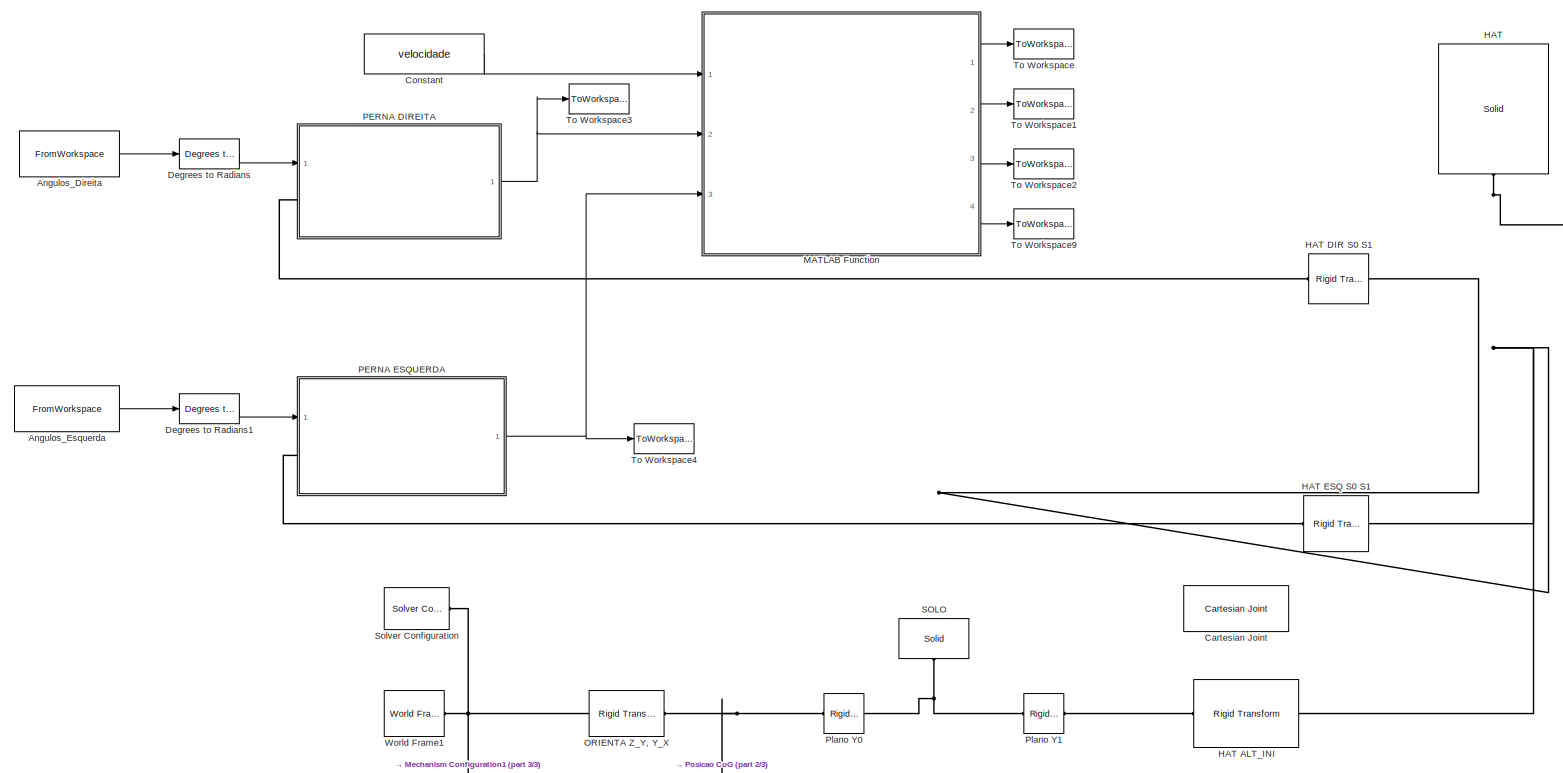
[diagram: root canvas - part 1/3, most of the canvas]
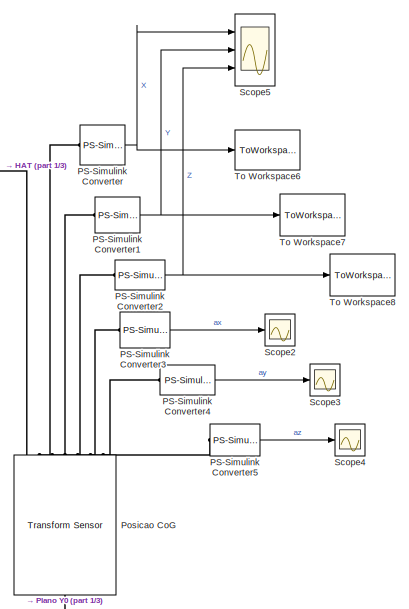
[diagram: root canvas - part 2/3, middle right region]
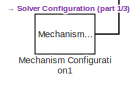
[diagram: root canvas - part 3/3, bottom left region]
MODEL slx_8b432cccf5de
KIND model
CONFIG AbsTol = 1e-5
CONFIG EnableMultiTasking = on
CONFIG FixedStep = auto
CONFIG MaxStep = 1e-2
CONFIG MinStep = auto
CONFIG RelTol = 1e-4
CONFIG SampleTimeConstraint = Unconstrained
CONFIG Solver = ode15s
CONFIG SolverName = ode15s
CONFIG StartTime = 0.0
CONFIG StopTime = ts
WORKSPACE source: external: MATLAB File  (data not in archive)
BLOCK [FromWorkspace] Angulos_Direita
  OutputAfterFinalValue = Holding final value
  SampleTime = 0
  VariableName = angulos_dir
  ZeroCross = on
BLOCK [FromWorkspace] Angulos_Esquerda
  OutputAfterFinalValue = Holding final value
  SampleTime = 0
  VariableName = angulos_esq
  ZeroCross = on
BLOCK [Reference] Cartesian Joint  REF=sm_lib/Joints/Cartesian
Joint
  Ports = [0, 0, 0, 0, 0, 1, 1]
  SourceBlock = sm_lib/Joints/Cartesian\nJoint
  SourceProductBaseCode = MS
  SourceProductName = Simscape Multibody
  SourceType = Cartesian\nJoint
BLOCK [Constant] Constant
  Value = velocidade
BLOCK [Reference] Degrees to Radians  REF=simulink_extras/Transformations/Degrees to
Radians
  Ports = [1, 1]
  SourceBlock = simulink_extras/Transformations/Degrees to\nRadians
  SourceProductBaseCode = SL
  SourceProductName = Simulink
  SourceType = DegreesToRadians
BLOCK [Reference] Degrees to Radians1  REF=simulink_extras/Transformations/Degrees to
Radians
  Ports = [1, 1]
  SourceBlock = simulink_extras/Transformations/Degrees to\nRadians
  SourceProductBaseCode = SL
  SourceProductName = Simulink
  SourceType = DegreesToRadians
BLOCK [Reference] HAT   REF=sm_lib/Body Elements/Solid
  Ports = [0, 0, 0, 0, 0, 1]
  SourceBlock = sm_lib/Body Elements/Solid
  SourceProductBaseCode = MS
  SourceProductName = Simscape Multibody
  SourceType = Solid
BLOCK [Reference] HAT ALT_INI  REF=sm_lib/Frames and
Transforms/Rigid
Transform
  Ports = [0, 0, 0, 0, 0, 1, 1]
  SourceBlock = sm_lib/Frames and\nTransforms/Rigid\nTransform
  SourceProductBaseCode = MS
  SourceProductName = Simscape Multibody
  SourceType = Rigid\nTransform
BLOCK [Reference] HAT DIR S0 S1  REF=sm_lib/Frames and
Transforms/Rigid
Transform
  Ports = [0, 0, 0, 0, 0, 1, 1]
  SourceBlock = sm_lib/Frames and\nTransforms/Rigid\nTransform
  SourceProductBaseCode = MS
  SourceProductName = Simscape Multibody
  SourceType = Rigid\nTransform
BLOCK [Reference] HAT ESQ S0 S1  REF=sm_lib/Frames and
Transforms/Rigid
Transform
  Ports = [0, 0, 0, 0, 0, 1, 1]
  SourceBlock = sm_lib/Frames and\nTransforms/Rigid\nTransform
  SourceProductBaseCode = MS
  SourceProductName = Simscape Multibody
  SourceType = Rigid\nTransform
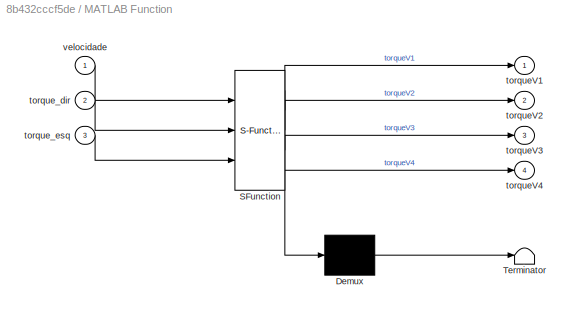
BLOCK [SubSystem] MATLAB Function
  ErrorFcn = Stateflow.Translate.translate
  PermitHierarchicalResolution = ExplicitOnly
  Ports = [3, 4]
  RequestExecContextInheritance = off
  SFBlockType = MATLAB Function
  TreatAsAtomicUnit = on
BLOCK [Demux] MATLAB Function/ Demux 
  Outputs = 1
  Ports = [1, 1]
BLOCK [S-Function] MATLAB Function/ SFunction 
  EnableBusSupport = on
  FunctionName = sf_sfun
  PortCounts = [3 5]
  Ports = [3, 5]
  SFcnIsStateOwnerBlock = off
  SFunctionDeploymentMode = off
  Tag = Stateflow S-Function Robo_Bipede 2
BLOCK [Terminator] MATLAB Function/ Terminator 
BLOCK [Outport] MATLAB Function/torqueV1
  IconDisplay = Port number
BLOCK [Outport] MATLAB Function/torqueV2
  IconDisplay = Port number
  Port = 2
BLOCK [Outport] MATLAB Function/torqueV3
  IconDisplay = Port number
  Port = 3
BLOCK [Outport] MATLAB Function/torqueV4
  IconDisplay = Port number
  Port = 4
BLOCK [Inport] MATLAB Function/torque_dir
  IconDisplay = Port number
  Port = 2
BLOCK [Inport] MATLAB Function/torque_esq
  IconDisplay = Port number
  Port = 3
BLOCK [Inport] MATLAB Function/velocidade
  IconDisplay = Port number
BLOCK [Reference] Mechanism Configuration1  REF=sm_lib/Utilities/Mechanism
Configuration
  Ports = [0, 0, 0, 0, 0, 0, 1]
  SourceBlock = sm_lib/Utilities/Mechanism\nConfiguration
  SourceProductBaseCode = MS
  SourceProductName = Simscape Multibody
  SourceType = Mechanism\nConfiguration
BLOCK [Reference] ORIENTA Z_Y, Y_X   REF=sm_lib/Frames and
Transforms/Rigid
Transform
  Ports = [0, 0, 0, 0, 0, 1, 1]
  SourceBlock = sm_lib/Frames and\nTransforms/Rigid\nTransform
  SourceProductBaseCode = MS
  SourceProductName = Simscape Multibody
  SourceType = Rigid\nTransform
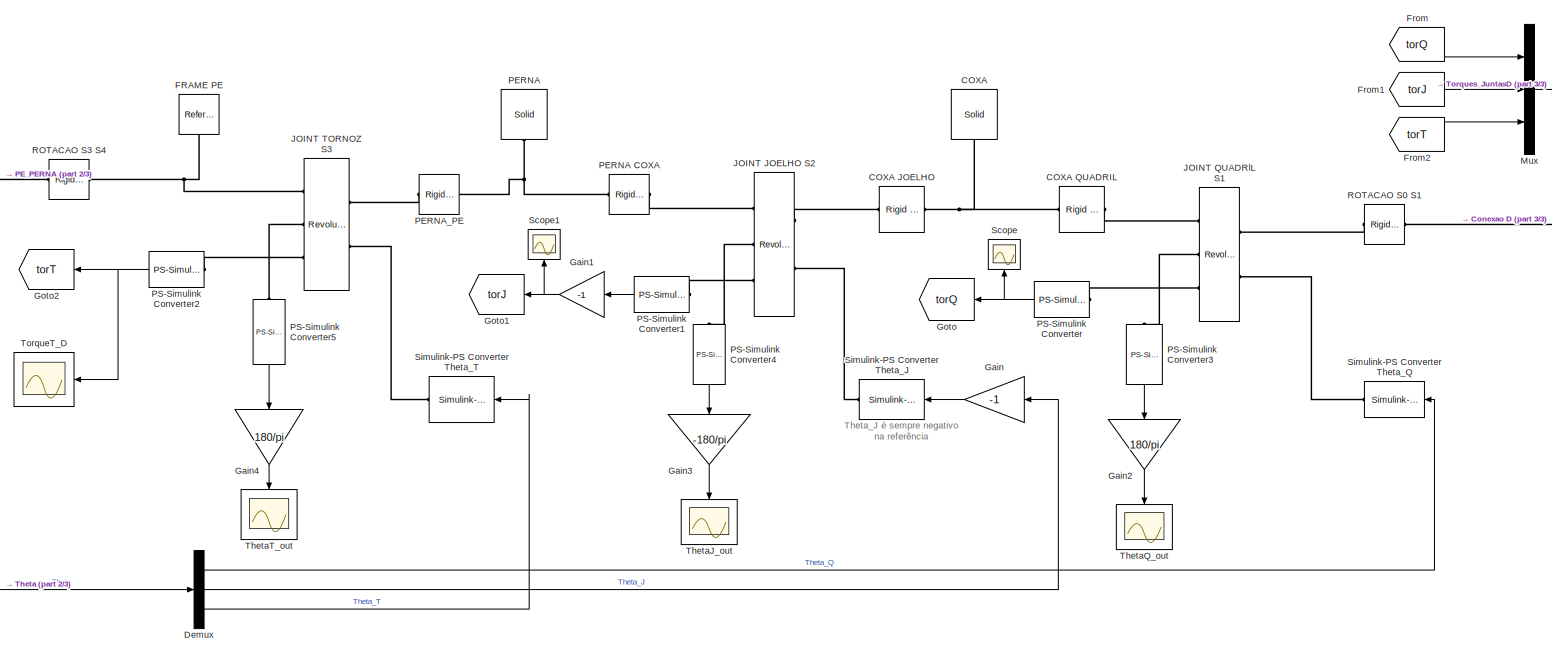
[diagram: PERNA DIREITA - part 1/3, most of the canvas]
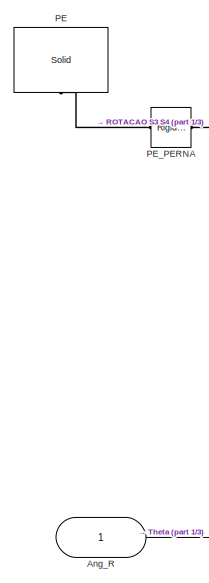
[diagram: PERNA DIREITA - part 2/3, left side, full height]
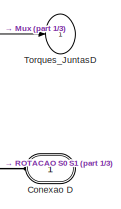
[diagram: PERNA DIREITA - part 3/3, top right region]
BLOCK [SubSystem] PERNA DIREITA
  Ports = [1, 1, 0, 0, 0, 1]
  RequestExecContextInheritance = off
BLOCK [Inport] PERNA DIREITA/Ang_R
  IconDisplay = Port number and signal name
BLOCK [Reference] PERNA DIREITA/COXA  REF=sm_lib/Body Elements/Solid
  Ports = [0, 0, 0, 0, 0, 0, 1]
  SourceBlock = sm_lib/Body Elements/Solid
  SourceProductBaseCode = MS
  SourceProductName = Simscape Multibody
  SourceType = Solid
BLOCK [Reference] PERNA DIREITA/COXA JOELHO  REF=sm_lib/Frames and
Transforms/Rigid
Transform
  Ports = [0, 0, 0, 0, 0, 1, 1]
  SourceBlock = sm_lib/Frames and\nTransforms/Rigid\nTransform
  SourceProductBaseCode = MS
  SourceProductName = Simscape Multibody
  SourceType = Rigid\nTransform
BLOCK [Reference] PERNA DIREITA/COXA QUADRIL  REF=sm_lib/Frames and
Transforms/Rigid
Transform
  Ports = [0, 0, 0, 0, 0, 1, 1]
  SourceBlock = sm_lib/Frames and\nTransforms/Rigid\nTransform
  SourceProductBaseCode = MS
  SourceProductName = Simscape Multibody
  SourceType = Rigid\nTransform
BLOCK [PMIOPort] PERNA DIREITA/Conexao D 
  Side = Left
BLOCK [Demux] PERNA DIREITA/Demux
  DisplayOption = bar
  Outputs = 3
  Ports = [1, 3]
BLOCK [Reference] PERNA DIREITA/FRAME PE  REF=sm_lib/Frames and
Transforms/Reference
Frame
  Ports = [0, 0, 0, 0, 0, 0, 1]
  SourceBlock = sm_lib/Frames and\nTransforms/Reference\nFrame
  SourceProductBaseCode = MS
  SourceProductName = Simscape Multibody
  SourceType = Reference\nFrame
BLOCK [From] PERNA DIREITA/From
  GotoTag = torQ
  IconDisplay = Tag and signal name
BLOCK [From] PERNA DIREITA/From1
  GotoTag = torJ
  IconDisplay = Tag and signal name
BLOCK [From] PERNA DIREITA/From2
  GotoTag = torT
  IconDisplay = Tag and signal name
BLOCK [Gain] PERNA DIREITA/Gain
  Gain = -1
  OutDataTypeStr = Inherit: Inherit via internal rule
  ParamDataTypeStr = Inherit: Inherit via internal rule
  SaturateOnIntegerOverflow = off
BLOCK [Gain] PERNA DIREITA/Gain1
  Gain = -1
  OutDataTypeStr = Inherit: Inherit via internal rule
  ParamDataTypeStr = Inherit: Inherit via internal rule
  SaturateOnIntegerOverflow = off
BLOCK [Gain] PERNA DIREITA/Gain2
  Gain = 180/pi
  OutDataTypeStr = Inherit: Inherit via internal rule
  ParamDataTypeStr = Inherit: Inherit via internal rule
  SaturateOnIntegerOverflow = off
BLOCK [Gain] PERNA DIREITA/Gain3
  Gain = -180/pi
  OutDataTypeStr = Inherit: Inherit via internal rule
  ParamDataTypeStr = Inherit: Inherit via internal rule
  SaturateOnIntegerOverflow = off
BLOCK [Gain] PERNA DIREITA/Gain4
  Gain = 180/pi
  OutDataTypeStr = Inherit: Inherit via internal rule
  ParamDataTypeStr = Inherit: Inherit via internal rule
  SaturateOnIntegerOverflow = off
BLOCK [Goto] PERNA DIREITA/Goto
  GotoTag = torQ
BLOCK [Goto] PERNA DIREITA/Goto1
  GotoTag = torJ
BLOCK [Goto] PERNA DIREITA/Goto2
  GotoTag = torT
BLOCK [Reference] PERNA DIREITA/JOINT JOELHO S2  REF=sm_lib/Joints/Revolute Joint
  Ports = [0, 0, 0, 0, 0, 2, 3]
  SourceBlock = sm_lib/Joints/Revolute Joint
  SourceProductBaseCode = MS
  SourceProductName = Simscape Multibody
  SourceType = Revolute Joint
BLOCK [Reference] PERNA DIREITA/JOINT QUADRlL S1  REF=sm_lib/Joints/Revolute Joint
  Ports = [0, 0, 0, 0, 0, 2, 3]
  SourceBlock = sm_lib/Joints/Revolute Joint
  SourceProductBaseCode = MS
  SourceProductName = Simscape Multibody
  SourceType = Revolute Joint
BLOCK [Reference] PERNA DIREITA/JOINT TORNOZ S3  REF=sm_lib/Joints/Revolute Joint
  Ports = [0, 0, 0, 0, 0, 2, 3]
  SourceBlock = sm_lib/Joints/Revolute Joint
  SourceProductBaseCode = MS
  SourceProductName = Simscape Multibody
  SourceType = Revolute Joint
BLOCK [Mux] PERNA DIREITA/Mux
  DisplayOption = bar
  Inputs = 3
  Ports = [3, 1]
BLOCK [Reference] PERNA DIREITA/PE  REF=sm_lib/Body Elements/Solid
  Ports = [0, 0, 0, 0, 0, 1]
  SourceBlock = sm_lib/Body Elements/Solid
  SourceProductBaseCode = MS
  SourceProductName = Simscape Multibody
  SourceType = Solid
BLOCK [Reference] PERNA DIREITA/PERNA  REF=sm_lib/Body Elements/Solid
  Ports = [0, 0, 0, 0, 0, 0, 1]
  SourceBlock = sm_lib/Body Elements/Solid
  SourceProductBaseCode = MS
  SourceProductName = Simscape Multibody
  SourceType = Solid
BLOCK [Reference] PERNA DIREITA/PERNA COXA  REF=sm_lib/Frames and
Transforms/Rigid
Transform
  Ports = [0, 0, 0, 0, 0, 1, 1]
  SourceBlock = sm_lib/Frames and\nTransforms/Rigid\nTransform
  SourceProductBaseCode = MS
  SourceProductName = Simscape Multibody
  SourceType = Rigid\nTransform
BLOCK [Reference] PERNA DIREITA/PERNA_PE  REF=sm_lib/Frames and
Transforms/Rigid
Transform
  Ports = [0, 0, 0, 0, 0, 1, 1]
  SourceBlock = sm_lib/Frames and\nTransforms/Rigid\nTransform
  SourceProductBaseCode = MS
  SourceProductName = Simscape Multibody
  SourceType = Rigid\nTransform
BLOCK [Reference] PERNA DIREITA/PE_PERNA  REF=sm_lib/Frames and
Transforms/Rigid
Transform
  Ports = [0, 0, 0, 0, 0, 1, 1]
  SourceBlock = sm_lib/Frames and\nTransforms/Rigid\nTransform
  SourceProductBaseCode = MS
  SourceProductName = Simscape Multibody
  SourceType = Rigid\nTransform
BLOCK [Reference] PERNA DIREITA/PS-Simulink Converter  REF=nesl_utility/PS-Simulink
Converter
  Ports = [0, 1, 0, 0, 0, 1]
  SourceBlock = nesl_utility/PS-Simulink\nConverter
  SourceProductBaseCode = SS
  SourceProductName = Simscape
  SourceType = PS-Simulink\nConverter
BLOCK [Reference] PERNA DIREITA/PS-Simulink Converter1  REF=nesl_utility/PS-Simulink
Converter
  Ports = [0, 1, 0, 0, 0, 1]
  SourceBlock = nesl_utility/PS-Simulink\nConverter
  SourceProductBaseCode = SS
  SourceProductName = Simscape
  SourceType = PS-Simulink\nConverter
BLOCK [Reference] PERNA DIREITA/PS-Simulink Converter2  REF=nesl_utility/PS-Simulink
Converter
  Ports = [0, 1, 0, 0, 0, 1]
  SourceBlock = nesl_utility/PS-Simulink\nConverter
  SourceProductBaseCode = SS
  SourceProductName = Simscape
  SourceType = PS-Simulink\nConverter
BLOCK [Reference] PERNA DIREITA/PS-Simulink Converter3  REF=nesl_utility/PS-Simulink
Converter
  Ports = [0, 1, 0, 0, 0, 1]
  SourceBlock = nesl_utility/PS-Simulink\nConverter
  SourceProductBaseCode = SS
  SourceProductName = Simscape
  SourceType = PS-Simulink\nConverter
BLOCK [Reference] PERNA DIREITA/PS-Simulink Converter4  REF=nesl_utility/PS-Simulink
Converter
  Ports = [0, 1, 0, 0, 0, 1]
  SourceBlock = nesl_utility/PS-Simulink\nConverter
  SourceProductBaseCode = SS
  SourceProductName = Simscape
  SourceType = PS-Simulink\nConverter
BLOCK [Reference] PERNA DIREITA/PS-Simulink Converter5  REF=nesl_utility/PS-Simulink
Converter
  Ports = [0, 1, 0, 0, 0, 1]
  SourceBlock = nesl_utility/PS-Simulink\nConverter
  SourceProductBaseCode = SS
  SourceProductName = Simscape
  SourceType = PS-Simulink\nConverter
BLOCK [Reference] PERNA DIREITA/ROTACAO S0 S1  REF=sm_lib/Frames and
Transforms/Rigid
Transform
  Ports = [0, 0, 0, 0, 0, 1, 1]
  SourceBlock = sm_lib/Frames and\nTransforms/Rigid\nTransform
  SourceProductBaseCode = MS
  SourceProductName = Simscape Multibody
  SourceType = Rigid\nTransform
BLOCK [Reference] PERNA DIREITA/ROTACAO S3 S4  REF=sm_lib/Frames and
Transforms/Rigid
Transform
  Ports = [0, 0, 0, 0, 0, 1, 1]
  SourceBlock = sm_lib/Frames and\nTransforms/Rigid\nTransform
  SourceProductBaseCode = MS
  SourceProductName = Simscape Multibody
  SourceType = Rigid\nTransform
BLOCK [Scope] PERNA DIREITA/Scope
  Floating = off
  NumInputPorts = 1
  Ports = [1]
  ScopeSpecificationString = Simulink.scopes.TimeScopeBlockCfg('CurrentConfiguration', extmgr.ConfigurationSet(extmgr.Configuration('Core','General UI',true),extmgr.Configuration('Core','Source UI',true),extmgr.Configuration('Sources','WiredSimulink',true,'DataLoggingVariableName','ScopeData1'),extmgr.Configuration('Visuals','Time Domain',true,'SerializedDisplays',{struct('MinYLimReal','-16.83503','MaxYLimReal','15.63622','YL...<+1386ch>
BLOCK [Scope] PERNA DIREITA/Scope1
  Floating = off
  NumInputPorts = 1
  Ports = [1]
  ScopeSpecificationString = Simulink.scopes.TimeScopeBlockCfg('CurrentConfiguration', extmgr.ConfigurationSet(extmgr.Configuration('Core','General UI',true),extmgr.Configuration('Core','Source UI',true),extmgr.Configuration('Sources','WiredSimulink',true,'DataLoggingVariableName','ScopeData2'),extmgr.Configuration('Visuals','Time Domain',true,'SerializedDisplays',{struct('MinYLimReal','-6.02814','MaxYLimReal','8.17694','YLab...<+1364ch>
BLOCK [Reference] PERNA DIREITA/Simulink-PS Converter Theta_J  REF=nesl_utility/Simulink-PS
Converter
  Ports = [1, 0, 0, 0, 0, 0, 1]
  SourceBlock = nesl_utility/Simulink-PS\nConverter
  SourceProductBaseCode = SS
  SourceProductName = Simscape
  SourceType = Simulink-PS\nConverter
BLOCK [Reference] PERNA DIREITA/Simulink-PS Converter Theta_Q  REF=nesl_utility/Simulink-PS
Converter
  Ports = [1, 0, 0, 0, 0, 0, 1]
  SourceBlock = nesl_utility/Simulink-PS\nConverter
  SourceProductBaseCode = SS
  SourceProductName = Simscape
  SourceType = Simulink-PS\nConverter
BLOCK [Reference] PERNA DIREITA/Simulink-PS Converter Theta_T  REF=nesl_utility/Simulink-PS
Converter
  Ports = [1, 0, 0, 0, 0, 0, 1]
  SourceBlock = nesl_utility/Simulink-PS\nConverter
  SourceProductBaseCode = SS
  SourceProductName = Simscape
  SourceType = Simulink-PS\nConverter
BLOCK [Scope] PERNA DIREITA/ThetaJ_out
  Floating = off
  NumInputPorts = 1
  Ports = [1]
  ScopeSpecificationString = Simulink.scopes.TimeScopeBlockCfg('CurrentConfiguration', extmgr.ConfigurationSet(extmgr.Configuration('Core','General UI',true),extmgr.Configuration('Core','Source UI',true),extmgr.Configuration('Sources','WiredSimulink',true,'DataLoggingVariableName','ScopeData3'),extmgr.Configuration('Visuals','Time Domain',true,'SerializedDisplays',{struct('MinYLimReal','4.55248','MaxYLimReal','67.56057','YLab...<+1445ch>
BLOCK [Scope] PERNA DIREITA/ThetaQ_out
  Floating = off
  NumInputPorts = 1
  Ports = [1]
  ScopeSpecificationString = Simulink.scopes.TimeScopeBlockCfg('CurrentConfiguration', extmgr.ConfigurationSet(extmgr.Configuration('Core','General UI',true),extmgr.Configuration('Core','Source UI',true),extmgr.Configuration('Sources','WiredSimulink',true,'DataLoggingVariableName','ScopeData2'),extmgr.Configuration('Visuals','Time Domain',true,'SerializedDisplays',{struct('MinYLimReal','-23.4319','MaxYLimReal','34.2249','YLab...<+1457ch>
BLOCK [Scope] PERNA DIREITA/ThetaT_out
  Floating = off
  NumInputPorts = 1
  Ports = [1]
  ScopeSpecificationString = Simulink.scopes.TimeScopeBlockCfg('CurrentConfiguration', extmgr.ConfigurationSet(extmgr.Configuration('Core','General UI',true),extmgr.Configuration('Core','Source UI',true),extmgr.Configuration('Sources','WiredSimulink',true,'DataLoggingVariableName','ScopeData4'),extmgr.Configuration('Visuals','Time Domain',true,'SerializedDisplays',{struct('MinYLimReal','-9.46202','MaxYLimReal','15.46415','YLa...<+1433ch>
BLOCK [Scope] PERNA DIREITA/TorqueT_D
  Floating = off
  NumInputPorts = 1
  Ports = [1]
  ScopeSpecificationString = Simulink.scopes.TimeScopeBlockCfg('CurrentConfiguration', extmgr.ConfigurationSet(extmgr.Configuration('Core','General UI',true),extmgr.Configuration('Core','Source UI',true),extmgr.Configuration('Sources','WiredSimulink',true,'DataLoggingVariableName','ScopeData1'),extmgr.Configuration('Visuals','Time Domain',true,'SerializedDisplays',{struct('MinYLimReal','-0.05599','MaxYLimReal','0.36362','YLab...<+1446ch>
BLOCK [Outport] PERNA DIREITA/Torques_JuntasD 
  IconDisplay = Port number
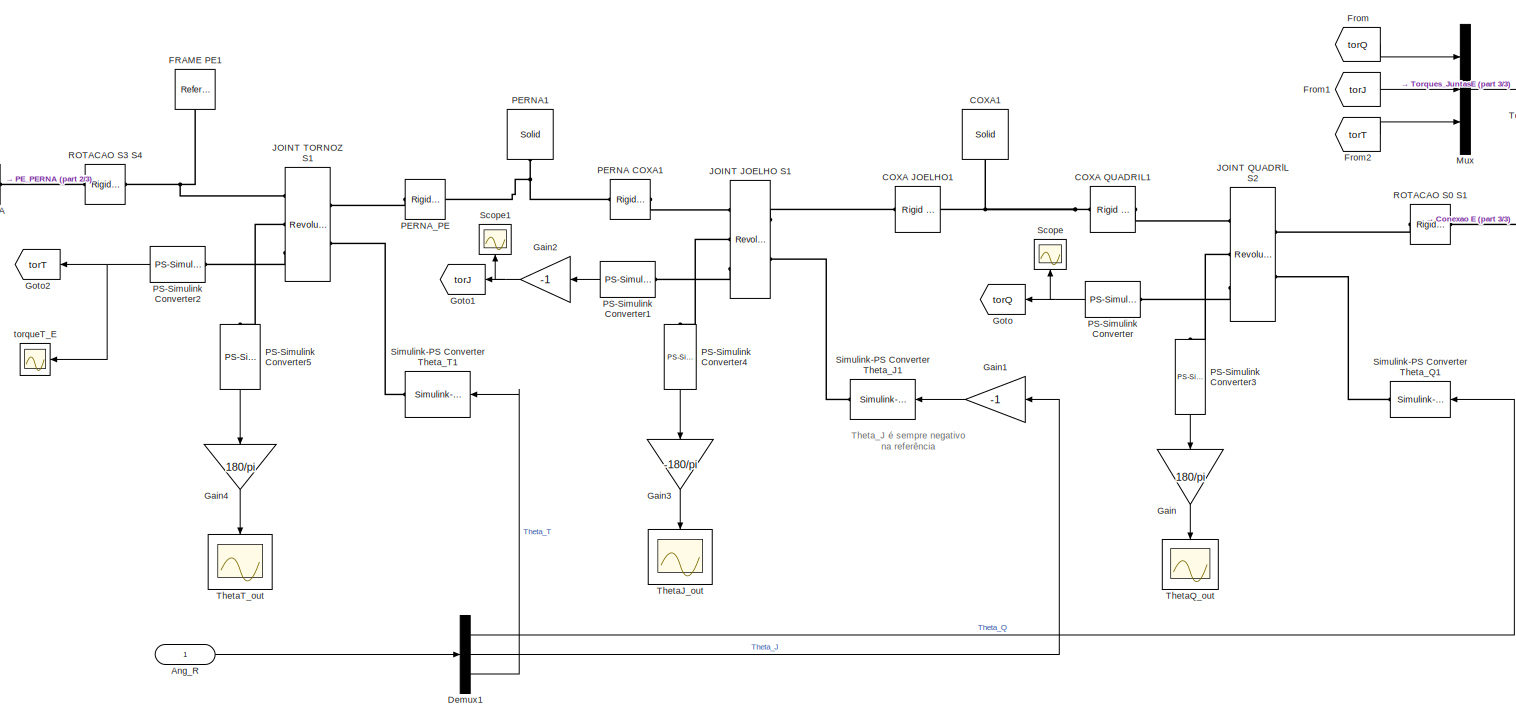
[diagram: PERNA ESQUERDA - part 1/3, most of the canvas]
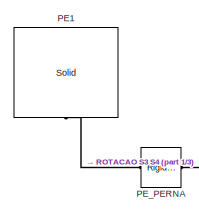
[diagram: PERNA ESQUERDA - part 2/3, top left region]
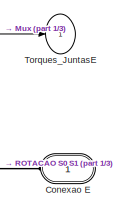
[diagram: PERNA ESQUERDA - part 3/3, top right region]
BLOCK [SubSystem] PERNA ESQUERDA
  Ports = [1, 1, 0, 0, 0, 1]
  RequestExecContextInheritance = off
BLOCK [Inport] PERNA ESQUERDA/Ang_R
  IconDisplay = Port number and signal name
BLOCK [Reference] PERNA ESQUERDA/COXA JOELHO1  REF=sm_lib/Frames and
Transforms/Rigid
Transform
  Ports = [0, 0, 0, 0, 0, 1, 1]
  SourceBlock = sm_lib/Frames and\nTransforms/Rigid\nTransform
  SourceProductBaseCode = MS
  SourceProductName = Simscape Multibody
  SourceType = Rigid\nTransform
BLOCK [Reference] PERNA ESQUERDA/COXA QUADRIL1  REF=sm_lib/Frames and
Transforms/Rigid
Transform
  Ports = [0, 0, 0, 0, 0, 1, 1]
  SourceBlock = sm_lib/Frames and\nTransforms/Rigid\nTransform
  SourceProductBaseCode = MS
  SourceProductName = Simscape Multibody
  SourceType = Rigid\nTransform
BLOCK [Reference] PERNA ESQUERDA/COXA1  REF=sm_lib/Body Elements/Solid
  Ports = [0, 0, 0, 0, 0, 0, 1]
  SourceBlock = sm_lib/Body Elements/Solid
  SourceProductBaseCode = MS
  SourceProductName = Simscape Multibody
  SourceType = Solid
BLOCK [PMIOPort] PERNA ESQUERDA/Conexao E
  Side = Left
BLOCK [Demux] PERNA ESQUERDA/Demux1
  DisplayOption = bar
  Outputs = 3
  Ports = [1, 3]
BLOCK [Reference] PERNA ESQUERDA/FRAME PE1  REF=sm_lib/Frames and
Transforms/Reference
Frame
  Ports = [0, 0, 0, 0, 0, 0, 1]
  SourceBlock = sm_lib/Frames and\nTransforms/Reference\nFrame
  SourceProductBaseCode = MS
  SourceProductName = Simscape Multibody
  SourceType = Reference\nFrame
BLOCK [From] PERNA ESQUERDA/From
  GotoTag = torQ
  IconDisplay = Tag and signal name
BLOCK [From] PERNA ESQUERDA/From1
  GotoTag = torJ
  IconDisplay = Tag and signal name
BLOCK [From] PERNA ESQUERDA/From2
  GotoTag = torT
  IconDisplay = Tag and signal name
BLOCK [Gain] PERNA ESQUERDA/Gain
  Gain = 180/pi
  OutDataTypeStr = Inherit: Inherit via internal rule
  ParamDataTypeStr = Inherit: Inherit via internal rule
  SaturateOnIntegerOverflow = off
BLOCK [Gain] PERNA ESQUERDA/Gain1
  Gain = -1
  OutDataTypeStr = Inherit: Inherit via internal rule
  ParamDataTypeStr = Inherit: Inherit via internal rule
  SaturateOnIntegerOverflow = off
BLOCK [Gain] PERNA ESQUERDA/Gain2
  Gain = -1
  OutDataTypeStr = Inherit: Inherit via internal rule
  ParamDataTypeStr = Inherit: Inherit via internal rule
  SaturateOnIntegerOverflow = off
BLOCK [Gain] PERNA ESQUERDA/Gain3
  Gain = -180/pi
  OutDataTypeStr = Inherit: Inherit via internal rule
  ParamDataTypeStr = Inherit: Inherit via internal rule
  SaturateOnIntegerOverflow = off
BLOCK [Gain] PERNA ESQUERDA/Gain4
  Gain = 180/pi
  OutDataTypeStr = Inherit: Inherit via internal rule
  ParamDataTypeStr = Inherit: Inherit via internal rule
  SaturateOnIntegerOverflow = off
BLOCK [Goto] PERNA ESQUERDA/Goto
  GotoTag = torQ
BLOCK [Goto] PERNA ESQUERDA/Goto1
  GotoTag = torJ
BLOCK [Goto] PERNA ESQUERDA/Goto2
  GotoTag = torT
BLOCK [Reference] PERNA ESQUERDA/JOINT JOELHO S1  REF=sm_lib/Joints/Revolute Joint
  Ports = [0, 0, 0, 0, 0, 2, 3]
  SourceBlock = sm_lib/Joints/Revolute Joint
  SourceProductBaseCode = MS
  SourceProductName = Simscape Multibody
  SourceType = Revolute Joint
BLOCK [Reference] PERNA ESQUERDA/JOINT QUADRlL S2  REF=sm_lib/Joints/Revolute Joint
  Ports = [0, 0, 0, 0, 0, 2, 3]
  SourceBlock = sm_lib/Joints/Revolute Joint
  SourceProductBaseCode = MS
  SourceProductName = Simscape Multibody
  SourceType = Revolute Joint
BLOCK [Reference] PERNA ESQUERDA/JOINT TORNOZ S1  REF=sm_lib/Joints/Revolute Joint
  Ports = [0, 0, 0, 0, 0, 2, 3]
  SourceBlock = sm_lib/Joints/Revolute Joint
  SourceProductBaseCode = MS
  SourceProductName = Simscape Multibody
  SourceType = Revolute Joint
BLOCK [Mux] PERNA ESQUERDA/Mux
  DisplayOption = bar
  Inputs = 3
  Ports = [3, 1]
BLOCK [Reference] PERNA ESQUERDA/PE1  REF=sm_lib/Body Elements/Solid
  Ports = [0, 0, 0, 0, 0, 1]
  SourceBlock = sm_lib/Body Elements/Solid
  SourceProductBaseCode = MS
  SourceProductName = Simscape Multibody
  SourceType = Solid
BLOCK [Reference] PERNA ESQUERDA/PERNA COXA1  REF=sm_lib/Frames and
Transforms/Rigid
Transform
  Ports = [0, 0, 0, 0, 0, 1, 1]
  SourceBlock = sm_lib/Frames and\nTransforms/Rigid\nTransform
  SourceProductBaseCode = MS
  SourceProductName = Simscape Multibody
  SourceType = Rigid\nTransform
BLOCK [Reference] PERNA ESQUERDA/PERNA1  REF=sm_lib/Body Elements/Solid
  Ports = [0, 0, 0, 0, 0, 0, 1]
  SourceBlock = sm_lib/Body Elements/Solid
  SourceProductBaseCode = MS
  SourceProductName = Simscape Multibody
  SourceType = Solid
BLOCK [Reference] PERNA ESQUERDA/PERNA_PE  REF=sm_lib/Frames and
Transforms/Rigid
Transform
  Ports = [0, 0, 0, 0, 0, 1, 1]
  SourceBlock = sm_lib/Frames and\nTransforms/Rigid\nTransform
  SourceProductBaseCode = MS
  SourceProductName = Simscape Multibody
  SourceType = Rigid\nTransform
BLOCK [Reference] PERNA ESQUERDA/PE_PERNA  REF=sm_lib/Frames and
Transforms/Rigid
Transform
  Ports = [0, 0, 0, 0, 0, 1, 1]
  SourceBlock = sm_lib/Frames and\nTransforms/Rigid\nTransform
  SourceProductBaseCode = MS
  SourceProductName = Simscape Multibody
  SourceType = Rigid\nTransform
BLOCK [Reference] PERNA ESQUERDA/PS-Simulink Converter  REF=nesl_utility/PS-Simulink
Converter
  Ports = [0, 1, 0, 0, 0, 1]
  SourceBlock = nesl_utility/PS-Simulink\nConverter
  SourceProductBaseCode = SS
  SourceProductName = Simscape
  SourceType = PS-Simulink\nConverter
BLOCK [Reference] PERNA ESQUERDA/PS-Simulink Converter1  REF=nesl_utility/PS-Simulink
Converter
  Ports = [0, 1, 0, 0, 0, 1]
  SourceBlock = nesl_utility/PS-Simulink\nConverter
  SourceProductBaseCode = SS
  SourceProductName = Simscape
  SourceType = PS-Simulink\nConverter
BLOCK [Reference] PERNA ESQUERDA/PS-Simulink Converter2  REF=nesl_utility/PS-Simulink
Converter
  Ports = [0, 1, 0, 0, 0, 1]
  SourceBlock = nesl_utility/PS-Simulink\nConverter
  SourceProductBaseCode = SS
  SourceProductName = Simscape
  SourceType = PS-Simulink\nConverter
BLOCK [Reference] PERNA ESQUERDA/PS-Simulink Converter3  REF=nesl_utility/PS-Simulink
Converter
  Ports = [0, 1, 0, 0, 0, 1]
  SourceBlock = nesl_utility/PS-Simulink\nConverter
  SourceProductBaseCode = SS
  SourceProductName = Simscape
  SourceType = PS-Simulink\nConverter
BLOCK [Reference] PERNA ESQUERDA/PS-Simulink Converter4  REF=nesl_utility/PS-Simulink
Converter
  Ports = [0, 1, 0, 0, 0, 1]
  SourceBlock = nesl_utility/PS-Simulink\nConverter
  SourceProductBaseCode = SS
  SourceProductName = Simscape
  SourceType = PS-Simulink\nConverter
BLOCK [Reference] PERNA ESQUERDA/PS-Simulink Converter5  REF=nesl_utility/PS-Simulink
Converter
  Ports = [0, 1, 0, 0, 0, 1]
  SourceBlock = nesl_utility/PS-Simulink\nConverter
  SourceProductBaseCode = SS
  SourceProductName = Simscape
  SourceType = PS-Simulink\nConverter
BLOCK [Reference] PERNA ESQUERDA/ROTACAO S0 S1  REF=sm_lib/Frames and
Transforms/Rigid
Transform
  Ports = [0, 0, 0, 0, 0, 1, 1]
  SourceBlock = sm_lib/Frames and\nTransforms/Rigid\nTransform
  SourceProductBaseCode = MS
  SourceProductName = Simscape Multibody
  SourceType = Rigid\nTransform
BLOCK [Reference] PERNA ESQUERDA/ROTACAO S3 S4  REF=sm_lib/Frames and
Transforms/Rigid
Transform
  Ports = [0, 0, 0, 0, 0, 1, 1]
  SourceBlock = sm_lib/Frames and\nTransforms/Rigid\nTransform
  SourceProductBaseCode = MS
  SourceProductName = Simscape Multibody
  SourceType = Rigid\nTransform
BLOCK [Scope] PERNA ESQUERDA/Scope
  Floating = off
  NumInputPorts = 1
  Ports = [1]
  ScopeSpecificationString = Simulink.scopes.TimeScopeBlockCfg('CurrentConfiguration', extmgr.ConfigurationSet(extmgr.Configuration('Core','General UI',true),extmgr.Configuration('Core','Source UI',true),extmgr.Configuration('Sources','WiredSimulink',true,'DataLoggingVariableName','ScopeData1'),extmgr.Configuration('Visuals','Time Domain',true,'SerializedDisplays',{struct('MinYLimReal','-19.59624','MaxYLimReal','15.81812','YL...<+1426ch>
BLOCK [Scope] PERNA ESQUERDA/Scope1
  Floating = off
  NumInputPorts = 1
  Ports = [1]
  ScopeSpecificationString = Simulink.scopes.TimeScopeBlockCfg('CurrentConfiguration', extmgr.ConfigurationSet(extmgr.Configuration('Core','General UI',true),extmgr.Configuration('Core','Source UI',true),extmgr.Configuration('Sources','WiredSimulink',true,'DataLoggingVariableName','ScopeData2'),extmgr.Configuration('Visuals','Time Domain',true,'SerializedDisplays',{struct('MinYLimReal','-6.1214','MaxYLimReal','9.12169','YLabe...<+1362ch>
BLOCK [Reference] PERNA ESQUERDA/Simulink-PS Converter Theta_J1  REF=nesl_utility/Simulink-PS
Converter
  Ports = [1, 0, 0, 0, 0, 0, 1]
  SourceBlock = nesl_utility/Simulink-PS\nConverter
  SourceProductBaseCode = SS
  SourceProductName = Simscape
  SourceType = Simulink-PS\nConverter
BLOCK [Reference] PERNA ESQUERDA/Simulink-PS Converter Theta_Q1  REF=nesl_utility/Simulink-PS
Converter
  Ports = [1, 0, 0, 0, 0, 0, 1]
  SourceBlock = nesl_utility/Simulink-PS\nConverter
  SourceProductBaseCode = SS
  SourceProductName = Simscape
  SourceType = Simulink-PS\nConverter
BLOCK [Reference] PERNA ESQUERDA/Simulink-PS Converter Theta_T1  REF=nesl_utility/Simulink-PS
Converter
  Ports = [1, 0, 0, 0, 0, 0, 1]
  SourceBlock = nesl_utility/Simulink-PS\nConverter
  SourceProductBaseCode = SS
  SourceProductName = Simscape
  SourceType = Simulink-PS\nConverter
BLOCK [Scope] PERNA ESQUERDA/ThetaJ_out
  Floating = off
  NumInputPorts = 1
  Ports = [1]
  ScopeSpecificationString = Simulink.scopes.TimeScopeBlockCfg('CurrentConfiguration', extmgr.ConfigurationSet(extmgr.Configuration('Core','General UI',true),extmgr.Configuration('Core','Source UI',true),extmgr.Configuration('Sources','WiredSimulink',true,'DataLoggingVariableName','ScopeData2'),extmgr.Configuration('Visuals','Time Domain',true,'SerializedDisplays',{struct('MinYLimReal','4.55288','MaxYLimReal','67.55912','YLab...<+1435ch>
BLOCK [Scope] PERNA ESQUERDA/ThetaQ_out
  Floating = off
  NumInputPorts = 1
  Ports = [1]
  ScopeSpecificationString = Simulink.scopes.TimeScopeBlockCfg('CurrentConfiguration', extmgr.ConfigurationSet(extmgr.Configuration('Core','General UI',true),extmgr.Configuration('Core','Source UI',true),extmgr.Configuration('Sources','WiredSimulink',true,'DataLoggingVariableName','ScopeData1'),extmgr.Configuration('Visuals','Time Domain',true,'SerializedDisplays',{struct('MinYLimReal','-23.73943','MaxYLimReal','34.25918','YL...<+1435ch>
BLOCK [Scope] PERNA ESQUERDA/ThetaT_out
  Floating = off
  NumInputPorts = 1
  Ports = [1]
  ScopeSpecificationString = Simulink.scopes.TimeScopeBlockCfg('CurrentConfiguration', extmgr.ConfigurationSet(extmgr.Configuration('Core','General UI',true),extmgr.Configuration('Core','Source UI',true),extmgr.Configuration('Sources','WiredSimulink',true,'DataLoggingVariableName','ScopeData3'),extmgr.Configuration('Visuals','Time Domain',true,'SerializedDisplays',{struct('MinYLimReal','-9.46297','MaxYLimReal','15.46425','YLa...<+1423ch>
BLOCK [Outport] PERNA ESQUERDA/Torques_JuntasE 
  IconDisplay = Port number
BLOCK [Scope] PERNA ESQUERDA/torqueT_E
  Floating = off
  NumInputPorts = 1
  Ports = [1]
  ScopeSpecificationString = Simulink.scopes.TimeScopeBlockCfg('CurrentConfiguration', extmgr.ConfigurationSet(extmgr.Configuration('Core','General UI',true),extmgr.Configuration('Core','Source UI',true),extmgr.Configuration('Sources','WiredSimulink',true,'DataLoggingVariableName','ScopeData1'),extmgr.Configuration('Visuals','Time Domain',true,'SerializedDisplays',{struct('MinYLimReal','-0.1154','MaxYLimReal','0.36812','YLabe...<+1474ch>
BLOCK [Reference] PS-Simulink Converter  REF=nesl_utility/PS-Simulink
Converter
  Ports = [0, 1, 0, 0, 0, 1]
  SourceBlock = nesl_utility/PS-Simulink\nConverter
  SourceProductBaseCode = SS
  SourceProductName = Simscape
  SourceType = PS-Simulink\nConverter
BLOCK [Reference] PS-Simulink Converter1  REF=nesl_utility/PS-Simulink
Converter
  Ports = [0, 1, 0, 0, 0, 1]
  SourceBlock = nesl_utility/PS-Simulink\nConverter
  SourceProductBaseCode = SS
  SourceProductName = Simscape
  SourceType = PS-Simulink\nConverter
BLOCK [Reference] PS-Simulink Converter2  REF=nesl_utility/PS-Simulink
Converter
  Ports = [0, 1, 0, 0, 0, 1]
  SourceBlock = nesl_utility/PS-Simulink\nConverter
  SourceProductBaseCode = SS
  SourceProductName = Simscape
  SourceType = PS-Simulink\nConverter
BLOCK [Reference] PS-Simulink Converter3  REF=nesl_utility/PS-Simulink
Converter
  Ports = [0, 1, 0, 0, 0, 1]
  SourceBlock = nesl_utility/PS-Simulink\nConverter
  SourceProductBaseCode = SS
  SourceProductName = Simscape
  SourceType = PS-Simulink\nConverter
BLOCK [Reference] PS-Simulink Converter4  REF=nesl_utility/PS-Simulink
Converter
  Ports = [0, 1, 0, 0, 0, 1]
  SourceBlock = nesl_utility/PS-Simulink\nConverter
  SourceProductBaseCode = SS
  SourceProductName = Simscape
  SourceType = PS-Simulink\nConverter
BLOCK [Reference] PS-Simulink Converter5  REF=nesl_utility/PS-Simulink
Converter
  Ports = [0, 1, 0, 0, 0, 1]
  SourceBlock = nesl_utility/PS-Simulink\nConverter
  SourceProductBaseCode = SS
  SourceProductName = Simscape
  SourceType = PS-Simulink\nConverter
BLOCK [Reference] Plano Y0   REF=sm_lib/Frames and
Transforms/Rigid
Transform
  Ports = [0, 0, 0, 0, 0, 1, 1]
  SourceBlock = sm_lib/Frames and\nTransforms/Rigid\nTransform
  SourceProductBaseCode = MS
  SourceProductName = Simscape Multibody
  SourceType = Rigid\nTransform
BLOCK [Reference] Plano Y1  REF=sm_lib/Frames and
Transforms/Rigid
Transform
  Ports = [0, 0, 0, 0, 0, 1, 1]
  SourceBlock = sm_lib/Frames and\nTransforms/Rigid\nTransform
  SourceProductBaseCode = MS
  SourceProductName = Simscape Multibody
  SourceType = Rigid\nTransform
BLOCK [Reference] Posicao CoG  REF=sm_lib/Frames and
Transforms/Transform
Sensor
  Ports = [0, 0, 0, 0, 0, 1, 7]
  SourceBlock = sm_lib/Frames and\nTransforms/Transform\nSensor
  SourceProductBaseCode = MS
  SourceProductName = Simscape Multibody
  SourceType = Transform\nSensor
BLOCK [Reference] SOLO   REF=sm_lib/Body Elements/Solid
  Ports = [0, 0, 0, 0, 0, 0, 1]
  SourceBlock = sm_lib/Body Elements/Solid
  SourceProductBaseCode = MS
  SourceProductName = Simscape Multibody
  SourceType = Solid
BLOCK [Scope] Scope2
  Floating = off
  NumInputPorts = 1
  Ports = [1]
  ScopeSpecificationString = Simulink.scopes.TimeScopeBlockCfg('CurrentConfiguration', extmgr.ConfigurationSet(extmgr.Configuration('Core','General UI',true),extmgr.Configuration('Core','Source UI',true),extmgr.Configuration('Sources','WiredSimulink',true,'DataLoggingVariableName','ScopeData4'),extmgr.Configuration('Visuals','Time Domain',true,'SerializedDisplays',{struct('MinYLimReal','-4.30113','MaxYLimReal','4.94244','YLab...<+1361ch>
BLOCK [Scope] Scope3
  Floating = off
  NumInputPorts = 1
  Ports = [1]
  ScopeSpecificationString = Simulink.scopes.TimeScopeBlockCfg('CurrentConfiguration', extmgr.ConfigurationSet(extmgr.Configuration('Core','General UI',true),extmgr.Configuration('Core','Source UI',true),extmgr.Configuration('Sources','WiredSimulink',true,'DataLoggingVariableName','ScopeData5'),extmgr.Configuration('Visuals','Time Domain',true,'SerializedDisplays',{struct('MinYLimReal','-13.24604','MaxYLimReal','-8.27645','YL...<+1367ch>
BLOCK [Scope] Scope4
  Floating = off
  NumInputPorts = 1
  Ports = [1]
  ScopeSpecificationString = Simulink.scopes.TimeScopeBlockCfg('CurrentConfiguration', extmgr.ConfigurationSet(extmgr.Configuration('Core','General UI',true),extmgr.Configuration('Core','Source UI',true),extmgr.Configuration('Sources','WiredSimulink',true,'DataLoggingVariableName','ScopeData6'),extmgr.Configuration('Visuals','Time Domain',true,'SerializedDisplays',{struct('MinYLimReal','-1.00000','MaxYLimReal','1.00000','YLab...<+1426ch>
BLOCK [Scope] Scope5
  Floating = off
  NumInputPorts = 3
  Ports = [3]
  ScopeSpecificationString = Simulink.scopes.TimeScopeBlockCfg('CurrentConfiguration', extmgr.ConfigurationSet(extmgr.Configuration('Core','General UI',true),extmgr.Configuration('Core','Source UI',true),extmgr.Configuration('Sources','WiredSimulink',true,'DataLoggingVariableName','ScopeData1'),extmgr.Configuration('Visuals','Time Domain',true,'SerializedDisplays',{struct('MinYLimReal','-0.11851','MaxYLimReal','1.06661','YLab...<+1433ch>
BLOCK [Reference] Solver Configuration  REF=nesl_utility/Solver
Configuration
  Ports = [0, 0, 0, 0, 0, 0, 1]
  SourceBlock = nesl_utility/Solver\nConfiguration
  SourceProductBaseCode = SS
  SourceProductName = Simscape
  SourceType = Solver\nConfiguration
BLOCK [ToWorkspace] To Workspace
  FixptAsFi = on
  MaxDataPoints = inf
  Ports = [1]
  SampleTime = -1
  SaveFormat = Structure With Time
  VariableName = torques_V1
BLOCK [ToWorkspace] To Workspace1
  FixptAsFi = on
  MaxDataPoints = inf
  Ports = [1]
  SampleTime = -1
  SaveFormat = Structure With Time
  VariableName = torques_V2
BLOCK [ToWorkspace] To Workspace2
  FixptAsFi = on
  MaxDataPoints = inf
  Ports = [1]
  SampleTime = -1
  SaveFormat = Structure With Time
  VariableName = torques_V3
BLOCK [ToWorkspace] To Workspace3
  FixptAsFi = on
  MaxDataPoints = inf
  Ports = [1]
  SampleTime = -1
  Save2DSignal = 3-D array (concatenate along third dimension)
  SaveFormat = Timeseries
  VariableName = torD
BLOCK [ToWorkspace] To Workspace4
  FixptAsFi = on
  MaxDataPoints = inf
  Ports = [1]
  SampleTime = -1
  Save2DSignal = 3-D array (concatenate along third dimension)
  SaveFormat = Structure With Time
  VariableName = torE
BLOCK [ToWorkspace] To Workspace6
  FixptAsFi = on
  MaxDataPoints = inf
  Ports = [1]
  SampleTime = -1
  Save2DSignal = 3-D array (concatenate along third dimension)
  SaveFormat = Structure With Time
  VariableName = X_CoG
BLOCK [ToWorkspace] To Workspace7
  FixptAsFi = on
  MaxDataPoints = inf
  Ports = [1]
  SampleTime = -1
  Save2DSignal = 3-D array (concatenate along third dimension)
  SaveFormat = Structure With Time
  VariableName = Y_CoG
BLOCK [ToWorkspace] To Workspace8
  FixptAsFi = on
  MaxDataPoints = inf
  Ports = [1]
  SampleTime = -1
  Save2DSignal = 3-D array (concatenate along third dimension)
  SaveFormat = Structure With Time
  VariableName = Z_CoG
BLOCK [ToWorkspace] To Workspace9
  FixptAsFi = on
  MaxDataPoints = inf
  Ports = [1]
  SampleTime = -1
  SaveFormat = Structure With Time
  VariableName = torques_V4
BLOCK [Reference] World Frame1  REF=sm_lib/Frames and
Transforms/World Frame
  Ports = [0, 0, 0, 0, 0, 0, 1]
  SourceBlock = sm_lib/Frames and\nTransforms/World Frame
  SourceProductBaseCode = MS
  SourceProductName = Simscape Multibody
  SourceType = World Frame
ANNOTATION PERNA DIREITA: Theta_J é sempre negativo na referência
ANNOTATION PERNA ESQUERDA: Theta_J é sempre negativo na referência
LINE Angulos_Direita:1 -> Degrees to Radians:1
LINE Angulos_Esquerda:1 -> Degrees to Radians1:1
LINE Constant:1 -> MATLAB Function:1
LINE Degrees to Radians1:1 -> PERNA ESQUERDA:1
LINE Degrees to Radians:1 -> PERNA DIREITA:1
LINE MATLAB Function:1 -> To Workspace:1
LINE MATLAB Function:2 -> To Workspace1:1
LINE MATLAB Function:3 -> To Workspace2:1
LINE MATLAB Function:4 -> To Workspace9:1
LINE PERNA DIREITA/Ang_R:1 -> PERNA DIREITA/Demux:1
LINE PERNA DIREITA/Demux:1 -> PERNA DIREITA/Simulink-PS Converter Theta_Q:1
LINE PERNA DIREITA/Demux:2 -> PERNA DIREITA/Gain:1
LINE PERNA DIREITA/Demux:3 -> PERNA DIREITA/Simulink-PS Converter Theta_T:1
LINE PERNA DIREITA/From1:1 -> PERNA DIREITA/Mux:2
LINE PERNA DIREITA/From2:1 -> PERNA DIREITA/Mux:3
LINE PERNA DIREITA/From:1 -> PERNA DIREITA/Mux:1
NET PERNA DIREITA/Gain1:1 -> PERNA DIREITA/Goto1:1, PERNA DIREITA/Scope1:1
LINE PERNA DIREITA/Gain2:1 -> PERNA DIREITA/ThetaQ_out:1
LINE PERNA DIREITA/Gain3:1 -> PERNA DIREITA/ThetaJ_out:1
LINE PERNA DIREITA/Gain4:1 -> PERNA DIREITA/ThetaT_out:1
LINE PERNA DIREITA/Gain:1 -> PERNA DIREITA/Simulink-PS Converter Theta_J:1
LINE PERNA DIREITA/Mux:1 -> PERNA DIREITA/Torques_JuntasD :1
LINE PERNA DIREITA/PS-Simulink Converter1:1 -> PERNA DIREITA/Gain1:1
NET PERNA DIREITA/PS-Simulink Converter2:1 -> PERNA DIREITA/Goto2:1, PERNA DIREITA/TorqueT_D:1
LINE PERNA DIREITA/PS-Simulink Converter3:1 -> PERNA DIREITA/Gain2:1
LINE PERNA DIREITA/PS-Simulink Converter4:1 -> PERNA DIREITA/Gain3:1
LINE PERNA DIREITA/PS-Simulink Converter5:1 -> PERNA DIREITA/Gain4:1
NET PERNA DIREITA/PS-Simulink Converter:1 -> PERNA DIREITA/Goto:1, PERNA DIREITA/Scope:1
NET PERNA DIREITA:1 -> MATLAB Function:2, To Workspace3:1
LINE PERNA ESQUERDA/Ang_R:1 -> PERNA ESQUERDA/Demux1:1
LINE PERNA ESQUERDA/Demux1:1 -> PERNA ESQUERDA/Simulink-PS Converter Theta_Q1:1
LINE PERNA ESQUERDA/Demux1:2 -> PERNA ESQUERDA/Gain1:1
LINE PERNA ESQUERDA/Demux1:3 -> PERNA ESQUERDA/Simulink-PS Converter Theta_T1:1
LINE PERNA ESQUERDA/From1:1 -> PERNA ESQUERDA/Mux:2
LINE PERNA ESQUERDA/From2:1 -> PERNA ESQUERDA/Mux:3
LINE PERNA ESQUERDA/From:1 -> PERNA ESQUERDA/Mux:1
LINE PERNA ESQUERDA/Gain1:1 -> PERNA ESQUERDA/Simulink-PS Converter Theta_J1:1
NET PERNA ESQUERDA/Gain2:1 -> PERNA ESQUERDA/Goto1:1, PERNA ESQUERDA/Scope1:1
LINE PERNA ESQUERDA/Gain3:1 -> PERNA ESQUERDA/ThetaJ_out:1
LINE PERNA ESQUERDA/Gain4:1 -> PERNA ESQUERDA/ThetaT_out:1
LINE PERNA ESQUERDA/Gain:1 -> PERNA ESQUERDA/ThetaQ_out:1
LINE PERNA ESQUERDA/Mux:1 -> PERNA ESQUERDA/Torques_JuntasE :1
LINE PERNA ESQUERDA/PS-Simulink Converter1:1 -> PERNA ESQUERDA/Gain2:1
NET PERNA ESQUERDA/PS-Simulink Converter2:1 -> PERNA ESQUERDA/Goto2:1, PERNA ESQUERDA/torqueT_E:1
LINE PERNA ESQUERDA/PS-Simulink Converter3:1 -> PERNA ESQUERDA/Gain:1
LINE PERNA ESQUERDA/PS-Simulink Converter4:1 -> PERNA ESQUERDA/Gain3:1
LINE PERNA ESQUERDA/PS-Simulink Converter5:1 -> PERNA ESQUERDA/Gain4:1
NET PERNA ESQUERDA/PS-Simulink Converter:1 -> PERNA ESQUERDA/Goto:1, PERNA ESQUERDA/Scope:1
NET PERNA ESQUERDA:1 -> MATLAB Function:3, To Workspace4:1
NET PS-Simulink Converter1:1 -> Scope5:2, To Workspace7:1
NET PS-Simulink Converter2:1 -> Scope5:3, To Workspace8:1
LINE PS-Simulink Converter3:1 -> Scope2:1
LINE PS-Simulink Converter4:1 -> Scope3:1
LINE PS-Simulink Converter5:1 -> Scope4:1
NET PS-Simulink Converter:1 -> Scope5:1, To Workspace6:1
PNET net1: HAT :LConn1 -- HAT ALT_INI:RConn1 -- HAT DIR S0 S1:LConn1 -- HAT ESQ S0 S1:LConn1 -- Posicao CoG:RConn1
PLINE HAT ALT_INI:LConn1 -- Plano Y1:RConn1
PLINE HAT DIR S0 S1:RConn1 -- PERNA DIREITA:LConn1
PLINE HAT ESQ S0 S1:RConn1 -- PERNA ESQUERDA:LConn1
PNET net2: Mechanism Configuration1:RConn1 -- ORIENTA Z_Y, Y_X :LConn1 -- Solver Configuration:RConn1 -- World Frame1:RConn1
PNET net3: ORIENTA Z_Y, Y_X :RConn1 -- Plano Y0 :RConn1 -- Posicao CoG:LConn1
PNET net4: PERNA DIREITA/COXA JOELHO:LConn1 -- PERNA DIREITA/COXA QUADRIL:LConn1 -- PERNA DIREITA/COXA:RConn1
PLINE PERNA DIREITA/COXA JOELHO:RConn1 -- PERNA DIREITA/JOINT JOELHO S2:LConn1
PLINE PERNA DIREITA/COXA QUADRIL:RConn1 -- PERNA DIREITA/JOINT QUADRlL S1:RConn1
PLINE PERNA DIREITA/Conexao D :RConn1 -- PERNA DIREITA/ROTACAO S0 S1:LConn1
PNET net5: PERNA DIREITA/FRAME PE:RConn1 -- PERNA DIREITA/JOINT TORNOZ S3:RConn1 -- PERNA DIREITA/ROTACAO S3 S4:LConn1
PLINE PERNA DIREITA/JOINT JOELHO S2:LConn2 -- PERNA DIREITA/Simulink-PS Converter Theta_J:RConn1
PLINE PERNA DIREITA/JOINT JOELHO S2:RConn1 -- PERNA DIREITA/PERNA COXA:RConn1
PLINE PERNA DIREITA/JOINT JOELHO S2:RConn2 -- PERNA DIREITA/PS-Simulink Converter4:LConn1
PLINE PERNA DIREITA/JOINT JOELHO S2:RConn3 -- PERNA DIREITA/PS-Simulink Converter1:LConn1
PLINE PERNA DIREITA/JOINT QUADRlL S1:LConn1 -- PERNA DIREITA/ROTACAO S0 S1:RConn1
PLINE PERNA DIREITA/JOINT QUADRlL S1:LConn2 -- PERNA DIREITA/Simulink-PS Converter Theta_Q:RConn1
PLINE PERNA DIREITA/JOINT QUADRlL S1:RConn2 -- PERNA DIREITA/PS-Simulink Converter3:LConn1
PLINE PERNA DIREITA/JOINT QUADRlL S1:RConn3 -- PERNA DIREITA/PS-Simulink Converter:LConn1
PLINE PERNA DIREITA/JOINT TORNOZ S3:LConn1 -- PERNA DIREITA/PERNA_PE:RConn1
PLINE PERNA DIREITA/JOINT TORNOZ S3:LConn2 -- PERNA DIREITA/Simulink-PS Converter Theta_T:RConn1
PLINE PERNA DIREITA/JOINT TORNOZ S3:RConn2 -- PERNA DIREITA/PS-Simulink Converter5:LConn1
PLINE PERNA DIREITA/JOINT TORNOZ S3:RConn3 -- PERNA DIREITA/PS-Simulink Converter2:LConn1
PLINE PERNA DIREITA/PE:LConn1 -- PERNA DIREITA/PE_PERNA:LConn1
PNET net6: PERNA DIREITA/PERNA COXA:LConn1 -- PERNA DIREITA/PERNA:RConn1 -- PERNA DIREITA/PERNA_PE:LConn1
PLINE PERNA DIREITA/PE_PERNA:RConn1 -- PERNA DIREITA/ROTACAO S3 S4:RConn1
PNET net7: PERNA ESQUERDA/COXA JOELHO1:LConn1 -- PERNA ESQUERDA/COXA QUADRIL1:LConn1 -- PERNA ESQUERDA/COXA1:RConn1
PLINE PERNA ESQUERDA/COXA JOELHO1:RConn1 -- PERNA ESQUERDA/JOINT JOELHO S1:LConn1
PLINE PERNA ESQUERDA/COXA QUADRIL1:RConn1 -- PERNA ESQUERDA/JOINT QUADRlL S2:RConn1
PLINE PERNA ESQUERDA/Conexao E:RConn1 -- PERNA ESQUERDA/ROTACAO S0 S1:LConn1
PNET net8: PERNA ESQUERDA/FRAME PE1:RConn1 -- PERNA ESQUERDA/JOINT TORNOZ S1:RConn1 -- PERNA ESQUERDA/ROTACAO S3 S4:LConn1
PLINE PERNA ESQUERDA/JOINT JOELHO S1:LConn2 -- PERNA ESQUERDA/Simulink-PS Converter Theta_J1:RConn1
PLINE PERNA ESQUERDA/JOINT JOELHO S1:RConn1 -- PERNA ESQUERDA/PERNA COXA1:RConn1
PLINE PERNA ESQUERDA/JOINT JOELHO S1:RConn2 -- PERNA ESQUERDA/PS-Simulink Converter4:LConn1
PLINE PERNA ESQUERDA/JOINT JOELHO S1:RConn3 -- PERNA ESQUERDA/PS-Simulink Converter1:LConn1
PLINE PERNA ESQUERDA/JOINT QUADRlL S2:LConn1 -- PERNA ESQUERDA/ROTACAO S0 S1:RConn1
PLINE PERNA ESQUERDA/JOINT QUADRlL S2:LConn2 -- PERNA ESQUERDA/Simulink-PS Converter Theta_Q1:RConn1
PLINE PERNA ESQUERDA/JOINT QUADRlL S2:RConn2 -- PERNA ESQUERDA/PS-Simulink Converter3:LConn1
PLINE PERNA ESQUERDA/JOINT QUADRlL S2:RConn3 -- PERNA ESQUERDA/PS-Simulink Converter:LConn1
PLINE PERNA ESQUERDA/JOINT TORNOZ S1:LConn1 -- PERNA ESQUERDA/PERNA_PE:RConn1
PLINE PERNA ESQUERDA/JOINT TORNOZ S1:LConn2 -- PERNA ESQUERDA/Simulink-PS Converter Theta_T1:RConn1
PLINE PERNA ESQUERDA/JOINT TORNOZ S1:RConn2 -- PERNA ESQUERDA/PS-Simulink Converter5:LConn1
PLINE PERNA ESQUERDA/JOINT TORNOZ S1:RConn3 -- PERNA ESQUERDA/PS-Simulink Converter2:LConn1
PLINE PERNA ESQUERDA/PE1:LConn1 -- PERNA ESQUERDA/PE_PERNA:LConn1
PNET net9: PERNA ESQUERDA/PERNA COXA1:LConn1 -- PERNA ESQUERDA/PERNA1:RConn1 -- PERNA ESQUERDA/PERNA_PE:LConn1
PLINE PERNA ESQUERDA/PE_PERNA:RConn1 -- PERNA ESQUERDA/ROTACAO S3 S4:RConn1
PLINE PS-Simulink Converter1:LConn1 -- Posicao CoG:RConn3
PLINE PS-Simulink Converter2:LConn1 -- Posicao CoG:RConn4
PLINE PS-Simulink Converter3:LConn1 -- Posicao CoG:RConn5
PLINE PS-Simulink Converter4:LConn1 -- Posicao CoG:RConn6
PLINE PS-Simulink Converter5:LConn1 -- Posicao CoG:RConn7
PLINE PS-Simulink Converter:LConn1 -- Posicao CoG:RConn2
PNET net10: Plano Y0 :LConn1 -- Plano Y1:LConn1 -- SOLO :RConn1
note: NET lines group one-source signal fan-out (src -> all destinations, sorted); 1:1 wires keep LINE; PNET lines group multi-terminal physical nets as a canonical sorted terminal list (undirected conserving connections); 2-terminal nets keep the pairwise PLINE form
CHART MATLAB Function states=1 transitions=1
  STATE_LABEL 'eML_blk_kernel()'
  STATE_LABEL 'SCRIPT:\nfunction [torqueV1,torqueV2,torqueV3,torqueV4] = save_torque(velocidade,torque_dir,torque_esq)\n\n% Seleciona a Struct Data para salvar os torques calculados para as juntas\n% da perna direita e da perna esquerda segundo a velocidade de marcha V\n\n% Defino as variaveis tipo PERSISTENT\npersistent v\npersistent tv1\npersistent tv2\npersistent tv3\npersistent tv4\n\n  \nif isempty(v)\n    v = velocidade;...<+764ch>'
